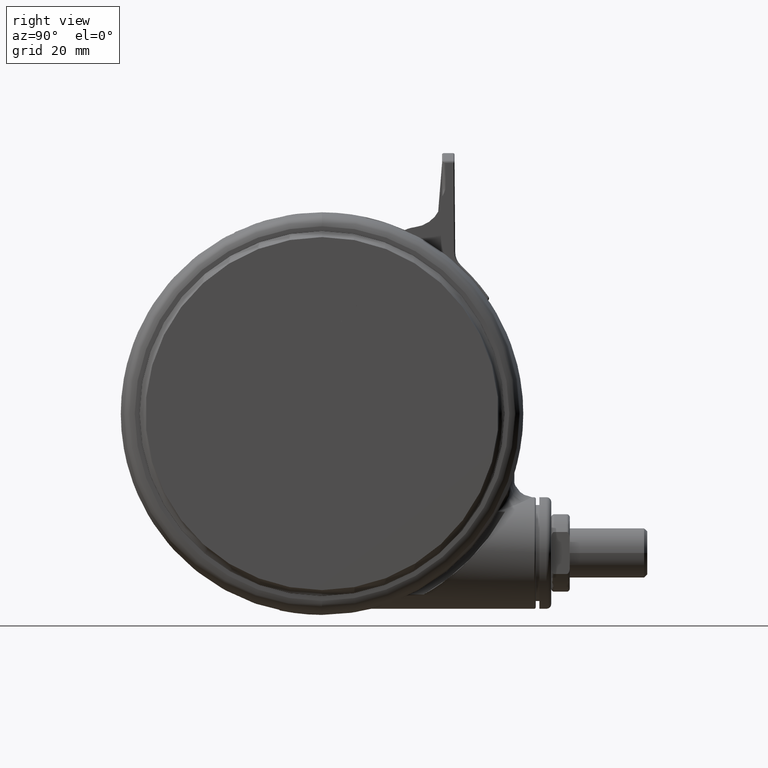
[diagram: clean part render]
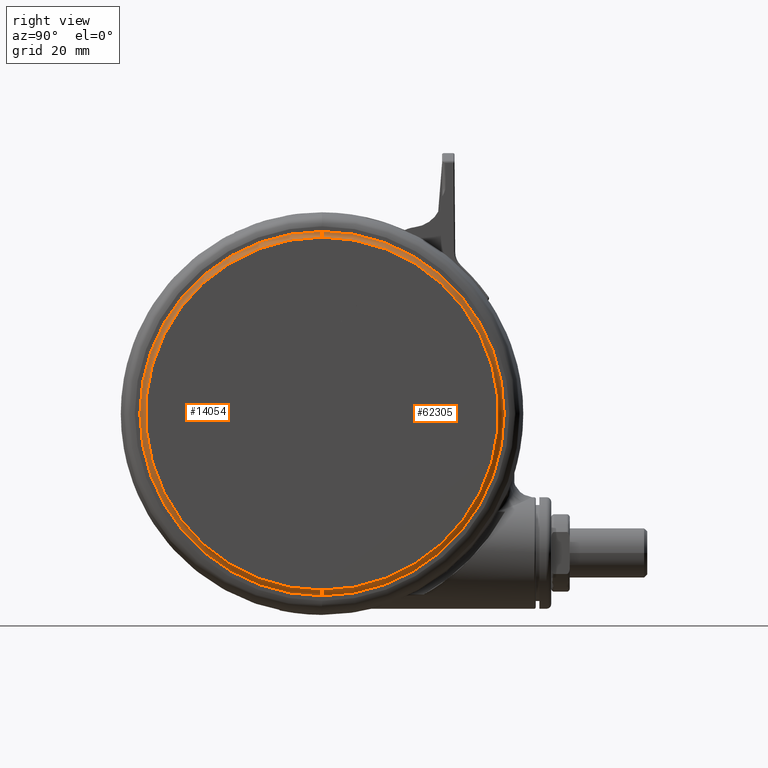
[diagram: same view with one multi-face feature highlighted, each face labeled with its STEP entity id]
A machine part, right view. The highlighted faces form ONE feature: a constant-radius fillet chain: 2 tangent blend faces with common blend radius 2.2 mm. The faces share edges in the B-rep.
Their STEP definitions:
[1] entity #62305 (Torus):
#740 = CARTESIAN_POINT ( 'NONE',  ( -57.00000000000000000, 2.214894934127188600E-014, -0.1205505282296627800 ) ) ;
#3459 = VERTEX_POINT ( 'NONE', #740 ) ;
#7239 = CARTESIAN_POINT ( 'NONE',  ( 58.81739130435093400, -1.565209472656019200E-014, -2.287024757482408100 ) ) ;
#8255 = EDGE_CURVE ( 'NONE', #81019, #3459, #44437, .T. ) ;
#12064 = CARTESIAN_POINT ( 'NONE',  ( 0.0000000000000000000, 0.0000000000000000000, -0.1205505282296627800 ) ) ;
#12338 = EDGE_CURVE ( 'NONE', #64200, #3459, #68761, .T. ) ;
#12779 = EDGE_LOOP ( 'NONE', ( #72942, #75544, #55991, #17382 ) ) ;
#14407 = CARTESIAN_POINT ( 'NONE',  ( 59.20000000000000300, -1.575391201928092300E-014, -0.1205505282296627800 ) ) ;
#14425 = AXIS2_PLACEMENT_3D ( 'NONE', #27297, #71241, #33637 ) ;
#17382 = ORIENTED_EDGE ( 'NONE', *, *, #12338, .F. ) ;
#18526 = CIRCLE ( 'NONE', #66918, 2.200000000000000600 ) ;
#20716 = DIRECTION ( 'NONE',  ( -1.000000000000000000, 2.661133787040694400E-016, 0.0000000000000000000 ) ) ;
#22212 = CARTESIAN_POINT ( 'NONE',  ( 57.00000000000000000, -1.516846258613197000E-014, -0.1205505282296627800 ) ) ;
#25276 = AXIS2_PLACEMENT_3D ( 'NONE', #33808, #77714, #40167 ) ;
#27297 = CARTESIAN_POINT ( 'NONE',  ( -59.20000000000000300, 2.300382107023325500E-014, -0.1205505282296627800 ) ) ;
#27821 = VERTEX_POINT ( 'NONE', #7239 ) ;
#28878 = AXIS2_PLACEMENT_3D ( 'NONE', #69391, #31822, #75705 ) ;
#31822 = DIRECTION ( 'NONE',  ( 0.0000000000000000000, 0.0000000000000000000, 1.000000000000000000 ) ) ;
#33637 = DIRECTION ( 'NONE',  ( 1.000000000000000000, -3.885780586188053300E-016, 0.0000000000000000000 ) ) ;
#33808 = CARTESIAN_POINT ( 'NONE',  ( 0.0000000000000000000, 0.0000000000000000000, -0.1205505282296627800 ) ) ;
#37639 = CIRCLE ( 'NONE', #28878, 58.81739130434760200 ) ;
#40167 = DIRECTION ( 'NONE',  ( -1.000000000000000000, 3.885780586188049900E-016, 0.0000000000000000000 ) ) ;
#43202 = EDGE_CURVE ( 'NONE', #27821, #64200, #18526, .T. ) ;
#44437 = CIRCLE ( 'NONE', #14425, 2.200000000000000600 ) ;
#54238 = AXIS2_PLACEMENT_3D ( 'NONE', #12064, #80956, #68616 ) ;
#55991 = ORIENTED_EDGE ( 'NONE', *, *, #8255, .T. ) ;
#58356 = DIRECTION ( 'NONE',  ( 2.661133787040696400E-016, 1.000000000000000000, 0.0000000000000000000 ) ) ;
#62305 = ADVANCED_FACE ( 'NONE', ( #73653 ), #71674, .F. ) ;
#64200 = VERTEX_POINT ( 'NONE', #22212 ) ;
#66918 = AXIS2_PLACEMENT_3D ( 'NONE', #14407, #58356, #20716 ) ;
#67888 = EDGE_CURVE ( 'NONE', #27821, #81019, #37639, .T. ) ;
#68616 = DIRECTION ( 'NONE',  ( -1.000000000000000000, 3.885780586188049900E-016, 0.0000000000000000000 ) ) ;
#68761 = CIRCLE ( 'NONE', #25276, 57.00000000000000000 ) ;
#69391 = CARTESIAN_POINT ( 'NONE',  ( 0.0000000000000000000, 0.0000000000000000000, -2.287024757482408100 ) ) ;
#71241 = DIRECTION ( 'NONE',  ( -3.885780586188049900E-016, -1.000000000000000000, -0.0000000000000000000 ) ) ;
#71674 = TOROIDAL_SURFACE ( 'NONE', #54238, 59.20000000000000300, 2.200000000000000200 ) ;
#72942 = ORIENTED_EDGE ( 'NONE', *, *, #43202, .F. ) ;
#73653 = FACE_OUTER_BOUND ( 'NONE', #12779, .T. ) ;
#75544 = ORIENTED_EDGE ( 'NONE', *, *, #67888, .T. ) ;
#75705 = DIRECTION ( 'NONE',  ( 1.000000000000000000, -3.885780586188049900E-016, 0.0000000000000000000 ) ) ;
#77714 = DIRECTION ( 'NONE',  ( -0.0000000000000000000, -0.0000000000000000000, 1.000000000000000000 ) ) ;
#77790 = CARTESIAN_POINT ( 'NONE',  ( -58.81739130435093400, 2.285514772606726800E-014, -2.287024757482408100 ) ) ;
#80956 = DIRECTION ( 'NONE',  ( 0.0000000000000000000, 0.0000000000000000000, -1.000000000000000000 ) ) ;
#81019 = VERTEX_POINT ( 'NONE', #77790 ) ;
[2] entity #14054 (Torus):
#740 = CARTESIAN_POINT ( 'NONE',  ( -57.00000000000000000, 2.214894934127188600E-014, -0.1205505282296627800 ) ) ;
#1279 = DIRECTION ( 'NONE',  ( -0.0000000000000000000, -0.0000000000000000000, 1.000000000000000000 ) ) ;
#2189 = DIRECTION ( 'NONE',  ( 0.0000000000000000000, 0.0000000000000000000, 1.000000000000000000 ) ) ;
#3459 = VERTEX_POINT ( 'NONE', #740 ) ;
#3714 = ORIENTED_EDGE ( 'NONE', *, *, #46070, .T. ) ;
#6154 = CARTESIAN_POINT ( 'NONE',  ( 0.0000000000000000000, 0.0000000000000000000, -0.1205505282296627800 ) ) ;
#7239 = CARTESIAN_POINT ( 'NONE',  ( 58.81739130435093400, -1.565209472656019200E-014, -2.287024757482408100 ) ) ;
#8255 = EDGE_CURVE ( 'NONE', #81019, #3459, #44437, .T. ) ;
#14054 = ADVANCED_FACE ( 'NONE', ( #79414 ), #46032, .F. ) ;
#14407 = CARTESIAN_POINT ( 'NONE',  ( 59.20000000000000300, -1.575391201928092300E-014, -0.1205505282296627800 ) ) ;
#14425 = AXIS2_PLACEMENT_3D ( 'NONE', #27297, #71241, #33637 ) ;
#15249 = CIRCLE ( 'NONE', #24861, 57.00000000000000000 ) ;
#18526 = CIRCLE ( 'NONE', #66918, 2.200000000000000600 ) ;
#20716 = DIRECTION ( 'NONE',  ( -1.000000000000000000, 2.661133787040694400E-016, 0.0000000000000000000 ) ) ;
#22212 = CARTESIAN_POINT ( 'NONE',  ( 57.00000000000000000, -1.516846258613197000E-014, -0.1205505282296627800 ) ) ;
#24861 = AXIS2_PLACEMENT_3D ( 'NONE', #38999, #1279, #45281 ) ;
#27297 = CARTESIAN_POINT ( 'NONE',  ( -59.20000000000000300, 2.300382107023325500E-014, -0.1205505282296627800 ) ) ;
#27821 = VERTEX_POINT ( 'NONE', #7239 ) ;
#33637 = DIRECTION ( 'NONE',  ( 1.000000000000000000, -3.885780586188053300E-016, 0.0000000000000000000 ) ) ;
#35391 = EDGE_CURVE ( 'NONE', #3459, #64200, #15249, .T. ) ;
#38999 = CARTESIAN_POINT ( 'NONE',  ( 0.0000000000000000000, 0.0000000000000000000, -0.1205505282296627800 ) ) ;
#39903 = CARTESIAN_POINT ( 'NONE',  ( 0.0000000000000000000, 0.0000000000000000000, -2.287024757482408100 ) ) ;
#42294 = AXIS2_PLACEMENT_3D ( 'NONE', #6154, #62737, #75336 ) ;
#43202 = EDGE_CURVE ( 'NONE', #27821, #64200, #18526, .T. ) ;
#43736 = ORIENTED_EDGE ( 'NONE', *, *, #43202, .T. ) ;
#44437 = CIRCLE ( 'NONE', #14425, 2.200000000000000600 ) ;
#45281 = DIRECTION ( 'NONE',  ( -1.000000000000000000, 3.885780586188049900E-016, 0.0000000000000000000 ) ) ;
#46032 = TOROIDAL_SURFACE ( 'NONE', #42294, 59.20000000000000300, 2.200000000000000200 ) ;
#46070 = EDGE_CURVE ( 'NONE', #81019, #27821, #46993, .T. ) ;
#46148 = DIRECTION ( 'NONE',  ( 1.000000000000000000, -3.885780586188049900E-016, 0.0000000000000000000 ) ) ;
#46993 = CIRCLE ( 'NONE', #64539, 58.81739130434760200 ) ;
#58356 = DIRECTION ( 'NONE',  ( 2.661133787040696400E-016, 1.000000000000000000, 0.0000000000000000000 ) ) ;
#62426 = EDGE_LOOP ( 'NONE', ( #3714, #43736, #74819, #63843 ) ) ;
#62737 = DIRECTION ( 'NONE',  ( 0.0000000000000000000, 0.0000000000000000000, -1.000000000000000000 ) ) ;
#63843 = ORIENTED_EDGE ( 'NONE', *, *, #8255, .F. ) ;
#64200 = VERTEX_POINT ( 'NONE', #22212 ) ;
#64539 = AXIS2_PLACEMENT_3D ( 'NONE', #39903, #2189, #46148 ) ;
#66918 = AXIS2_PLACEMENT_3D ( 'NONE', #14407, #58356, #20716 ) ;
#71241 = DIRECTION ( 'NONE',  ( -3.885780586188049900E-016, -1.000000000000000000, -0.0000000000000000000 ) ) ;
#74819 = ORIENTED_EDGE ( 'NONE', *, *, #35391, .F. ) ;
#75336 = DIRECTION ( 'NONE',  ( -1.000000000000000000, 3.885780586188049900E-016, 0.0000000000000000000 ) ) ;
#77790 = CARTESIAN_POINT ( 'NONE',  ( -58.81739130435093400, 2.285514772606726800E-014, -2.287024757482408100 ) ) ;
#79414 = FACE_OUTER_BOUND ( 'NONE', #62426, .T. ) ;
#81019 = VERTEX_POINT ( 'NONE', #77790 ) ;